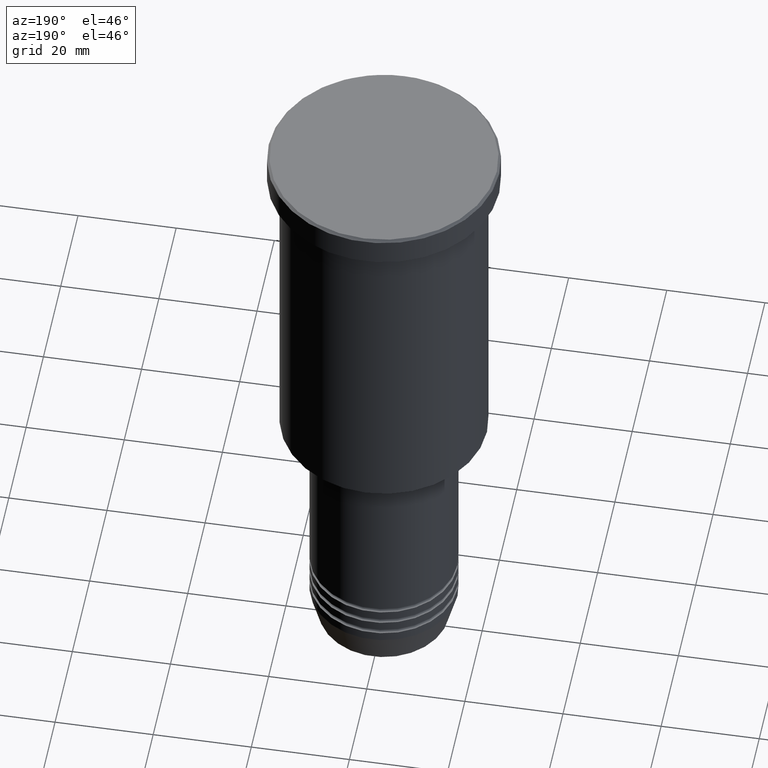
[diagram: clean part render]
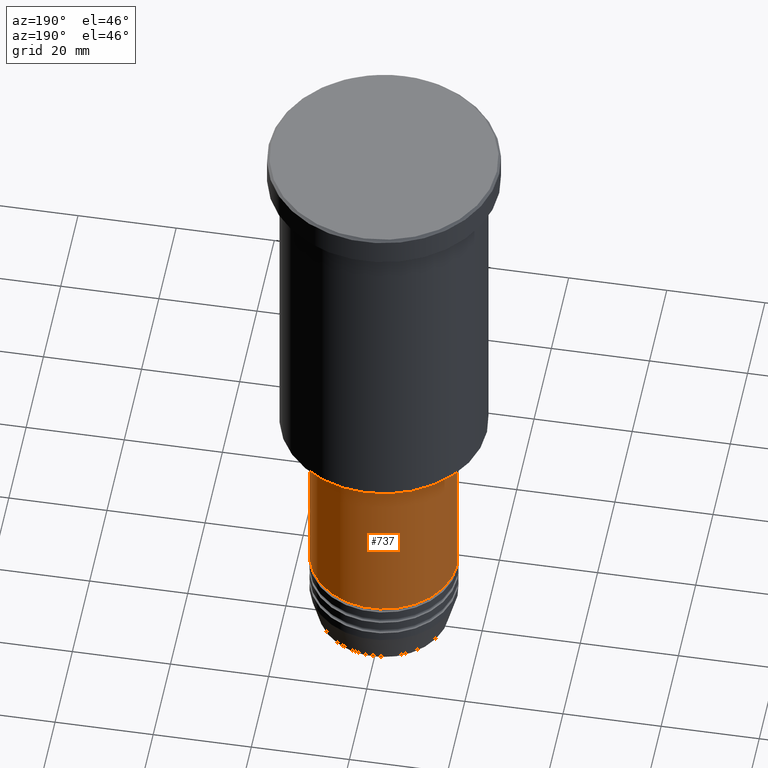
[diagram: same view with one face highlighted and labeled with its STEP entity id]
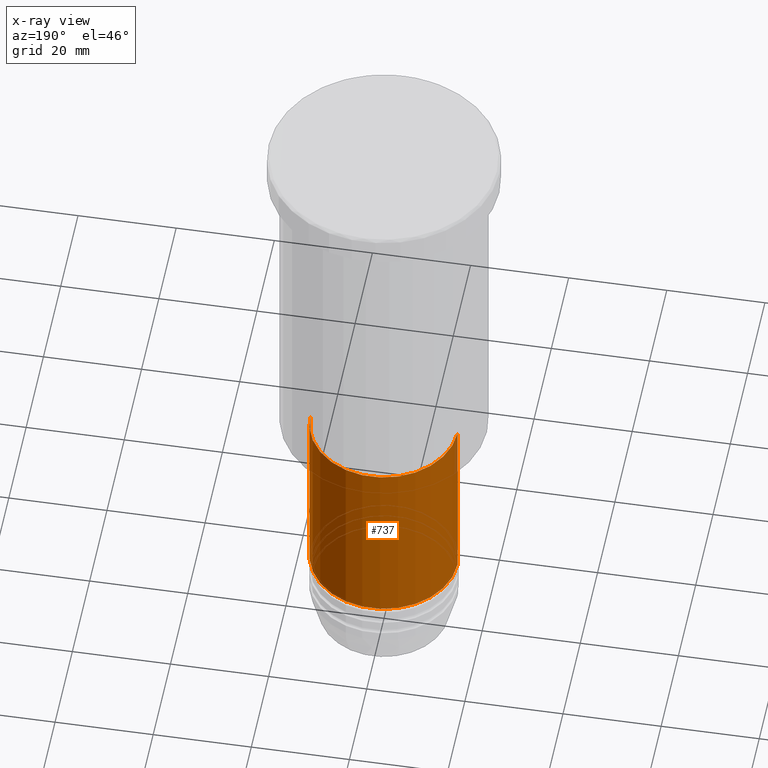
[diagram: x-ray of the same camera — body ghosted, the highlighted face saturated]
A machine part, auxiliary view. The second image highlights one B-rep face of the part: STEP entity #737.
The next image is the same camera in x-ray: the body ghosted, the highlighted face saturated — about 1% of this face is hidden behind the body in this view.
In plain terms, the highlighted cylindrical surface (partial cylindrical patch) has radius 15 mm, axis along (-0, -0, 1).
Its self-contained STEP definition (entity closure, byte-faithful):
#5 = CYLINDRICAL_SURFACE ( 'NONE', #246, 15.00000000000000000 ) ;
#29 = DIRECTION ( 'NONE',  ( -0.000000000000000000, -0.000000000000000000, 1.000000000000000000 ) ) ;
#32 = DIRECTION ( 'NONE',  ( -0.000000000000000000, -0.000000000000000000, 1.000000000000000000 ) ) ;
#34 = EDGE_CURVE ( 'NONE', #539, #813, #1029, .T. ) ;
#78 = AXIS2_PLACEMENT_3D ( 'NONE', #754, #32, #470 ) ;
#117 = CARTESIAN_POINT ( 'NONE',  ( -15.00000000000000000, 1.836970198721029589E-15, -114.9999999999999574 ) ) ;
#121 = VERTEX_POINT ( 'NONE', #259 ) ;
#123 = CARTESIAN_POINT ( 'NONE',  ( 15.00000000000000000, 0.000000000000000000, 0.000000000000000000 ) ) ;
#147 = ORIENTED_EDGE ( 'NONE', *, *, #515, .F. ) ;
#184 = CARTESIAN_POINT ( 'NONE',  ( 15.00000000000000000, 0.000000000000000000, -114.9999999999999574 ) ) ;
#229 = VECTOR ( 'NONE', #29, 1000.000000000000000 ) ;
#242 = ORIENTED_EDGE ( 'NONE', *, *, #34, .T. ) ;
#246 = AXIS2_PLACEMENT_3D ( 'NONE', #877, #266, #361 ) ;
#248 = CARTESIAN_POINT ( 'NONE',  ( -15.00000000000000000, 1.836970198721029589E-15, -76.99999999999998579 ) ) ;
#259 = CARTESIAN_POINT ( 'NONE',  ( 15.00000000000000000, 0.000000000000000000, -76.99999999999998579 ) ) ;
#266 = DIRECTION ( 'NONE',  ( -0.000000000000000000, -0.000000000000000000, 1.000000000000000000 ) ) ;
#295 = EDGE_LOOP ( 'NONE', ( #962, #242, #896, #147 ) ) ;
#351 = AXIS2_PLACEMENT_3D ( 'NONE', #759, #1127, #994 ) ;
#361 = DIRECTION ( 'NONE',  ( 1.000000000000000000, 0.000000000000000000, 0.000000000000000000 ) ) ;
#470 = DIRECTION ( 'NONE',  ( 1.000000000000000000, 0.000000000000000000, 0.000000000000000000 ) ) ;
#509 = EDGE_CURVE ( 'NONE', #982, #539, #779, .T. ) ;
#515 = EDGE_CURVE ( 'NONE', #982, #121, #1116, .T. ) ;
#539 = VERTEX_POINT ( 'NONE', #117 ) ;
#732 = CIRCLE ( 'NONE', #351, 15.00000000000000000 ) ;
#737 = ADVANCED_FACE ( 'NONE', ( #1065 ), #5, .T. ) ;
#741 = VECTOR ( 'NONE', #760, 1000.000000000000000 ) ;
#754 = CARTESIAN_POINT ( 'NONE',  ( 0.000000000000000000, 0.000000000000000000, -114.9999999999999574 ) ) ;
#759 = CARTESIAN_POINT ( 'NONE',  ( 0.000000000000000000, 0.000000000000000000, -76.99999999999998579 ) ) ;
#760 = DIRECTION ( 'NONE',  ( -0.000000000000000000, -0.000000000000000000, 1.000000000000000000 ) ) ;
#779 = CIRCLE ( 'NONE', #78, 15.00000000000000000 ) ;
#813 = VERTEX_POINT ( 'NONE', #248 ) ;
#877 = CARTESIAN_POINT ( 'NONE',  ( 0.000000000000000000, 0.000000000000000000, 0.000000000000000000 ) ) ;
#896 = ORIENTED_EDGE ( 'NONE', *, *, #979, .F. ) ;
#962 = ORIENTED_EDGE ( 'NONE', *, *, #509, .T. ) ;
#979 = EDGE_CURVE ( 'NONE', #121, #813, #732, .T. ) ;
#982 = VERTEX_POINT ( 'NONE', #184 ) ;
#994 = DIRECTION ( 'NONE',  ( 1.000000000000000000, 0.000000000000000000, 0.000000000000000000 ) ) ;
#1014 = CARTESIAN_POINT ( 'NONE',  ( -15.00000000000000000, 1.836970198721029589E-15, 0.000000000000000000 ) ) ;
#1029 = LINE ( 'NONE', #1014, #229 ) ;
#1065 = FACE_OUTER_BOUND ( 'NONE', #295, .T. ) ;
#1116 = LINE ( 'NONE', #123, #741 ) ;
#1127 = DIRECTION ( 'NONE',  ( -0.000000000000000000, -0.000000000000000000, 1.000000000000000000 ) ) ;